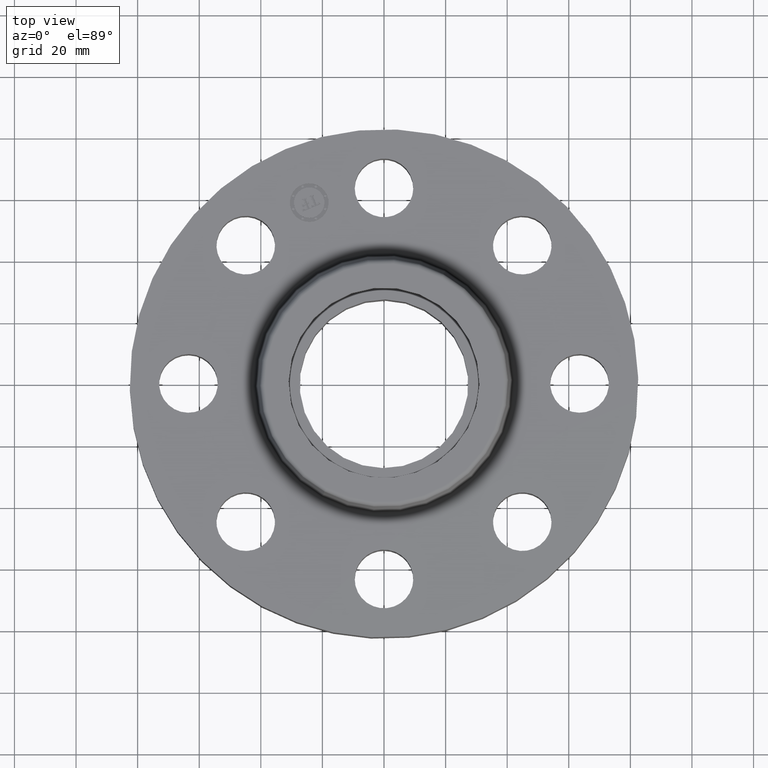
[diagram: clean part render]
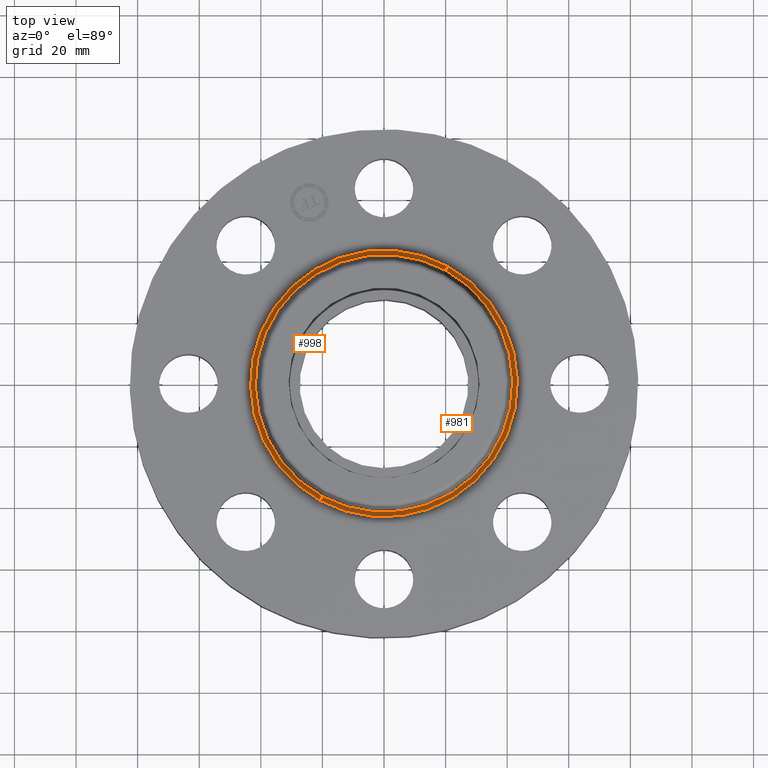
[diagram: same view with one multi-face feature highlighted, each face labeled with its STEP entity id]
A machine part, top view. The highlighted faces form ONE feature: a constant-radius fillet chain: 2 tangent blend faces with common blend radius 1.524 mm. The faces share edges in the B-rep.
Their STEP definitions:
[1] entity #998 (Torus):
#945=AXIS2_PLACEMENT_3D('Torus Axis2P3D',#942,#943,#944) ;
#958=AXIS2_PLACEMENT_3D('Circle Axis2P3D',#956,#957,$) ;
#972=AXIS2_PLACEMENT_3D('Circle Axis2P3D',#970,#971,$) ;
#984=AXIS2_PLACEMENT_3D('Circle Axis2P3D',#982,#983,$) ;
#989=AXIS2_PLACEMENT_3D('Circle Axis2P3D',#987,#988,$) ;
#942=CARTESIAN_POINT('Axis2P3D Location',(0.,0.,1.06)) ;
#951=CARTESIAN_POINT('Vertex',(0.81758641395,1.49658189218,1.)) ;
#953=CARTESIAN_POINT('Vertex',(-0.81758641395,-1.49658189218,1.)) ;
#956=CARTESIAN_POINT('Axis2P3D Location',(0.81758641395,1.49658189218,1.06)) ;
#960=CARTESIAN_POINT('Vertex',(0.789257894706,1.44472688552,1.04958110934)) ;
#967=CARTESIAN_POINT('Vertex',(-0.789257894706,-1.44472688552,1.04958110934)) ;
#970=CARTESIAN_POINT('Axis2P3D Location',(-0.81758641395,-1.49658189218,1.06)) ;
#982=CARTESIAN_POINT('Axis2P3D Location',(0.,0.,1.)) ;
#987=CARTESIAN_POINT('Axis2P3D Location',(0.,0.,1.04958110934)) ;
#943=DIRECTION('Axis2P3D Direction',(0.,0.,-0.0393700787402)) ;
#944=DIRECTION('Axis2P3D XDirection',(-0.0188750212049,-0.0345504945626,0.)) ;
#957=DIRECTION('Axis2P3D Direction',(-0.0345504945626,0.0188750212049,0.)) ;
#971=DIRECTION('Axis2P3D Direction',(0.0345504945626,-0.0188750212049,0.)) ;
#983=DIRECTION('Axis2P3D Direction',(0.,0.,-0.0393700787402)) ;
#988=DIRECTION('Axis2P3D Direction',(0.,0.,-0.0393700787402)) ;
#993=ORIENTED_EDGE('',*,*,#986,.F.) ;
#994=ORIENTED_EDGE('',*,*,#974,.T.) ;
#995=ORIENTED_EDGE('',*,*,#991,.T.) ;
#996=ORIENTED_EDGE('',*,*,#962,.F.) ;
#998=ADVANCED_FACE('PartBody',(#997),#946,.F.) ;
#959=CIRCLE('generated circle',#958,0.0600000000002) ;
#973=CIRCLE('generated circle',#972,0.0600000000002) ;
#985=CIRCLE('generated circle',#984,1.70534597788) ;
#990=CIRCLE('generated circle',#989,1.6462575127) ;
#946=TOROIDAL_SURFACE('homeo Torus',#945,1.70534597788,0.0600000000002) ;
#962=EDGE_CURVE('',#952,#961,#959,.T.) ;
#974=EDGE_CURVE('',#954,#968,#973,.T.) ;
#986=EDGE_CURVE('',#954,#952,#985,.T.) ;
#991=EDGE_CURVE('',#968,#961,#990,.T.) ;
#992=EDGE_LOOP('',(#993,#994,#995,#996)) ;
#997=FACE_OUTER_BOUND('',#992,.T.) ;
#952=VERTEX_POINT('',#951) ;
#954=VERTEX_POINT('',#953) ;
#961=VERTEX_POINT('',#960) ;
#968=VERTEX_POINT('',#967) ;
[2] entity #981 (Torus):
#945=AXIS2_PLACEMENT_3D('Torus Axis2P3D',#942,#943,#944) ;
#949=AXIS2_PLACEMENT_3D('Circle Axis2P3D',#947,#948,$) ;
#958=AXIS2_PLACEMENT_3D('Circle Axis2P3D',#956,#957,$) ;
#965=AXIS2_PLACEMENT_3D('Circle Axis2P3D',#963,#964,$) ;
#972=AXIS2_PLACEMENT_3D('Circle Axis2P3D',#970,#971,$) ;
#942=CARTESIAN_POINT('Axis2P3D Location',(0.,0.,1.06)) ;
#947=CARTESIAN_POINT('Axis2P3D Location',(0.,0.,1.)) ;
#951=CARTESIAN_POINT('Vertex',(0.81758641395,1.49658189218,1.)) ;
#953=CARTESIAN_POINT('Vertex',(-0.81758641395,-1.49658189218,1.)) ;
#956=CARTESIAN_POINT('Axis2P3D Location',(0.81758641395,1.49658189218,1.06)) ;
#960=CARTESIAN_POINT('Vertex',(0.789257894706,1.44472688552,1.04958110934)) ;
#963=CARTESIAN_POINT('Axis2P3D Location',(0.,0.,1.04958110934)) ;
#967=CARTESIAN_POINT('Vertex',(-0.789257894706,-1.44472688552,1.04958110934)) ;
#970=CARTESIAN_POINT('Axis2P3D Location',(-0.81758641395,-1.49658189218,1.06)) ;
#943=DIRECTION('Axis2P3D Direction',(0.,0.,-0.0393700787402)) ;
#944=DIRECTION('Axis2P3D XDirection',(-0.0188750212049,-0.0345504945626,0.)) ;
#948=DIRECTION('Axis2P3D Direction',(0.,0.,-0.0393700787402)) ;
#957=DIRECTION('Axis2P3D Direction',(-0.0345504945626,0.0188750212049,0.)) ;
#964=DIRECTION('Axis2P3D Direction',(0.,0.,-0.0393700787402)) ;
#971=DIRECTION('Axis2P3D Direction',(0.0345504945626,-0.0188750212049,0.)) ;
#976=ORIENTED_EDGE('',*,*,#955,.F.) ;
#977=ORIENTED_EDGE('',*,*,#962,.T.) ;
#978=ORIENTED_EDGE('',*,*,#969,.T.) ;
#979=ORIENTED_EDGE('',*,*,#974,.F.) ;
#981=ADVANCED_FACE('PartBody',(#980),#946,.F.) ;
#950=CIRCLE('generated circle',#949,1.70534597788) ;
#959=CIRCLE('generated circle',#958,0.0600000000002) ;
#966=CIRCLE('generated circle',#965,1.6462575127) ;
#973=CIRCLE('generated circle',#972,0.0600000000002) ;
#946=TOROIDAL_SURFACE('homeo Torus',#945,1.70534597788,0.0600000000002) ;
#955=EDGE_CURVE('',#952,#954,#950,.T.) ;
#962=EDGE_CURVE('',#952,#961,#959,.T.) ;
#969=EDGE_CURVE('',#961,#968,#966,.T.) ;
#974=EDGE_CURVE('',#954,#968,#973,.T.) ;
#975=EDGE_LOOP('',(#976,#977,#978,#979)) ;
#980=FACE_OUTER_BOUND('',#975,.T.) ;
#952=VERTEX_POINT('',#951) ;
#954=VERTEX_POINT('',#953) ;
#961=VERTEX_POINT('',#960) ;
#968=VERTEX_POINT('',#967) ;